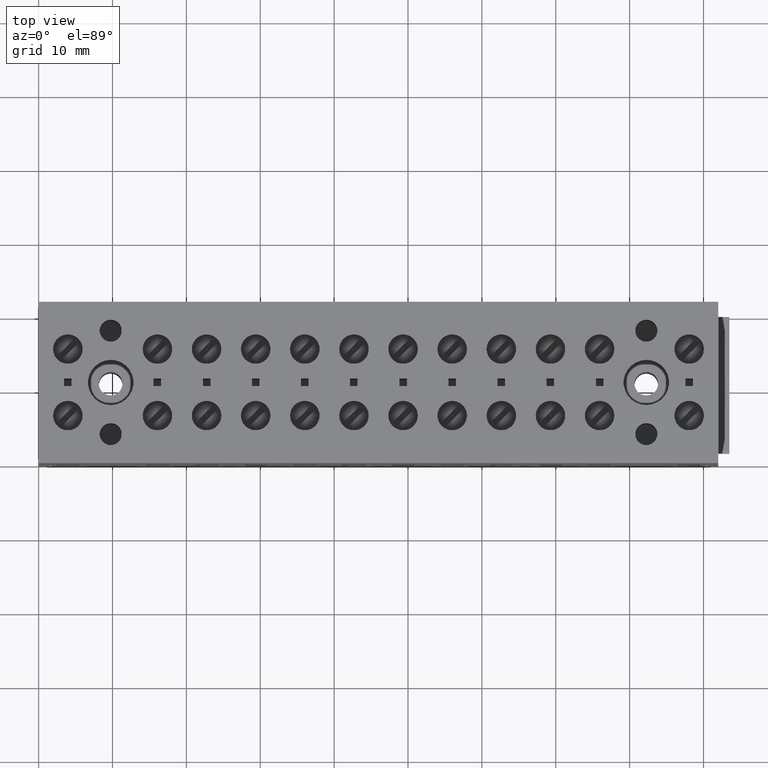
[diagram: clean part render]
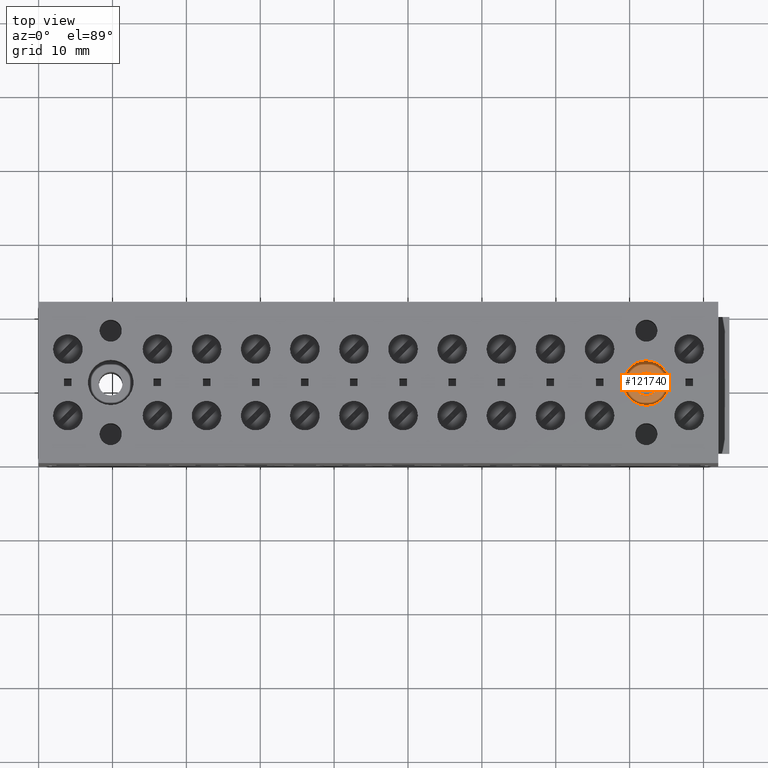
[diagram: same view with one face highlighted and labeled with its STEP entity id]
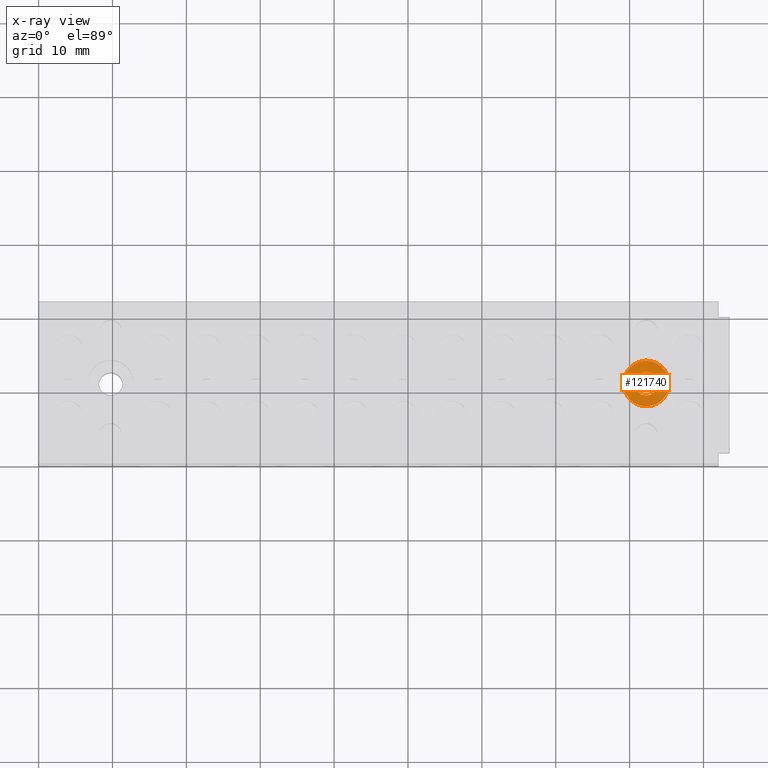
[diagram: x-ray of the same camera — body ghosted, the highlighted face saturated]
A machine part, top view. The second image highlights one B-rep face of the part: STEP entity #121740.
The next image is the same camera in x-ray: the body ghosted, the highlighted face saturated — about 0% of this face is hidden behind the body in this view.
In plain terms, the highlighted planar face has unit normal (0, 0, 1).
Its self-contained STEP definition (entity closure, byte-faithful):
#121190=CARTESIAN_POINT('',(-53.2323377413369,-180.978083115857,
12.5222636806417));
#121200=VERTEX_POINT('',#121190);
#121280=CARTESIAN_POINT('',(-53.2323377413369,-180.978083115857,
9.32226368064171));
#121290=VERTEX_POINT('',#121280);
#121320=CARTESIAN_POINT('',(-53.2323377413369,-180.978083115857,
10.9222636806417));
#121330=DIRECTION('',(-4.62223186652936E-33,-1.,3.33066907387547E-16));
#121340=DIRECTION('',(-4.16333634234434E-17,3.33066907387547E-16,1.));
#121350=AXIS2_PLACEMENT_3D('',#121320,#121330,#121340);
#121360=CIRCLE('',#121350,1.6);
#121370=EDGE_CURVE('',#121290,#121200,#121360,.T.);
#121490=CARTESIAN_POINT('',(-53.2323377413369,-180.978083115857,
13.5516952708613));
#121500=DIRECTION('',(0.,1.,-2.22044604925031E-16));
#121510=DIRECTION('',(-1.,0.,0.));
#121520=AXIS2_PLACEMENT_3D('',#121490,#121500,#121510);
#121530=PLANE('',#121520);
#121540=EDGE_CURVE('',#121200,#121290,#121360,.T.);
#121550=ORIENTED_EDGE('',*,*,#121540,.T.);
#121560=ORIENTED_EDGE('',*,*,#121370,.T.);
#121570=EDGE_LOOP('',(#121560,#121550));
#121580=FACE_BOUND('',#121570,.T.);
#121590=CARTESIAN_POINT('',(-53.2323377413369,-180.978083115857,
10.9222636806417));
#121600=DIRECTION('',(0.,1.,-2.22044604925031E-16));
#121610=DIRECTION('',(0.,-2.22044604925031E-16,-1.));
#121620=AXIS2_PLACEMENT_3D('',#121590,#121600,#121610);
#121630=CIRCLE('',#121620,3.08141605413437);
#121640=CARTESIAN_POINT('',(-53.2323377413369,-180.978083115857,
7.84084762650738));
#121650=VERTEX_POINT('',#121640);
#121660=CARTESIAN_POINT('',(-53.2323377413369,-180.978083115857,
14.0036797347761));
#121670=VERTEX_POINT('',#121660);
#121680=EDGE_CURVE('',#121650,#121670,#121630,.T.);
#121690=ORIENTED_EDGE('',*,*,#121680,.T.);
#121700=EDGE_CURVE('',#121670,#121650,#121630,.T.);
#121710=ORIENTED_EDGE('',*,*,#121700,.T.);
#121720=EDGE_LOOP('',(#121710,#121690));
#121730=FACE_OUTER_BOUND('',#121720,.T.);
#121740=ADVANCED_FACE('',(#121580,#121730),#121530,.T.);